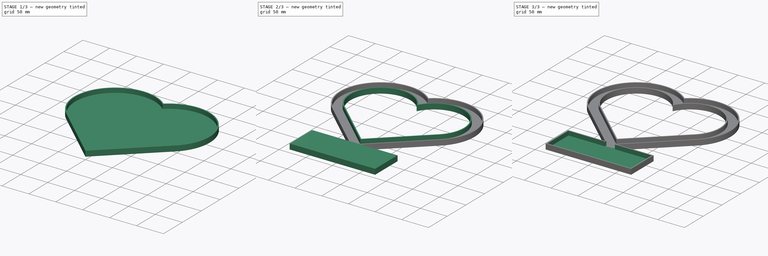
[diagram: build sequence overview — one tinted view per stage of 3, left to right]
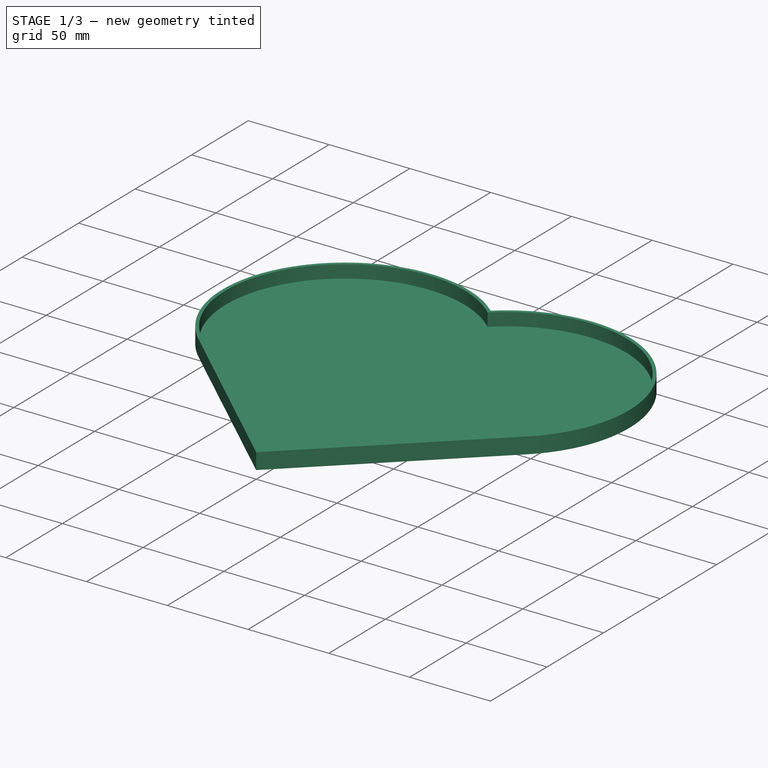
[diagram: stage 1 of 3 — iso view after this stage's code; geometry added in this stage tinted green]
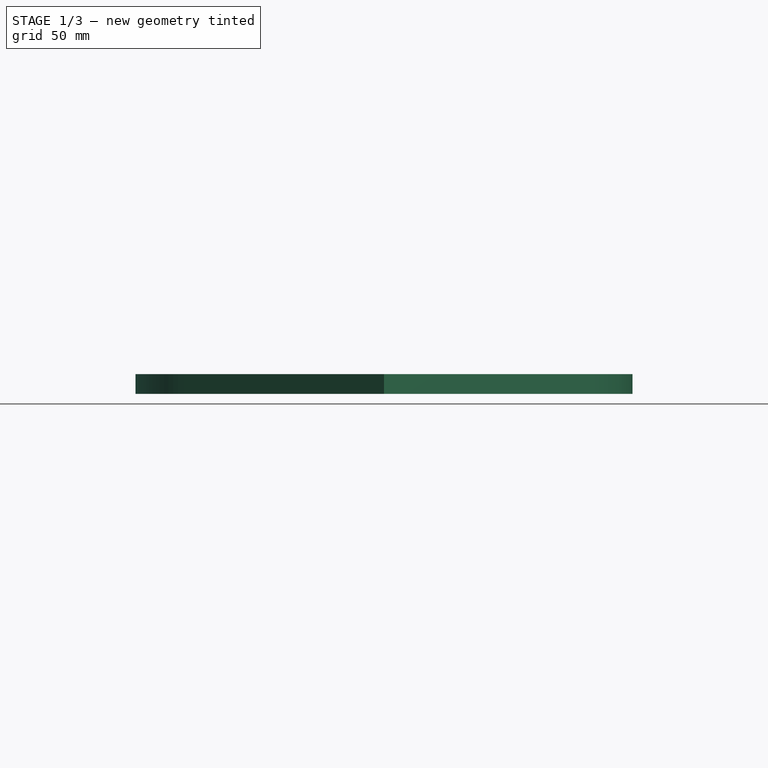
[diagram: stage 1 of 3 — front view after this stage's code; geometry added in this stage tinted green]
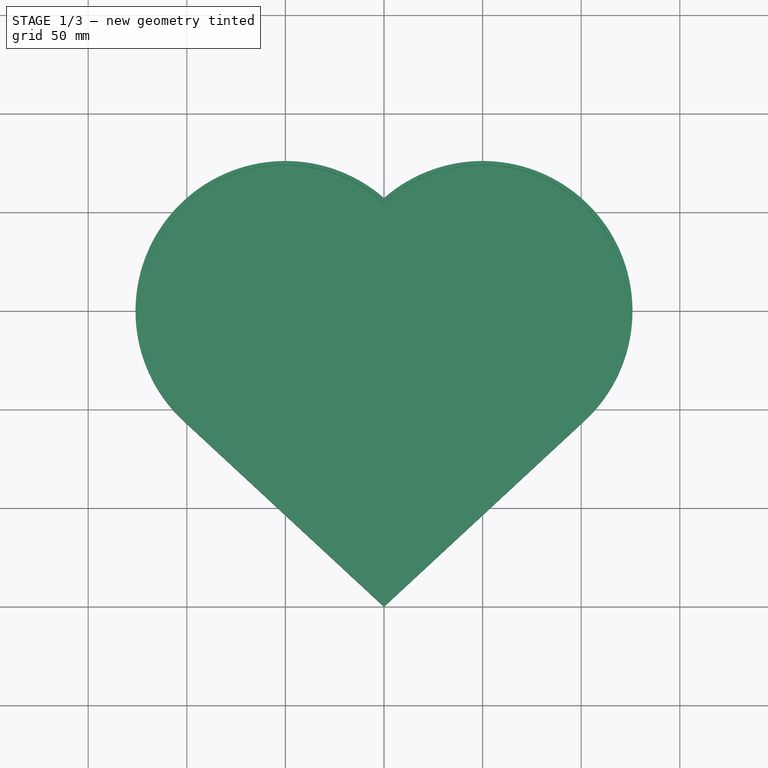
[diagram: stage 1 of 3 — top view after this stage's code; geometry added in this stage tinted green]
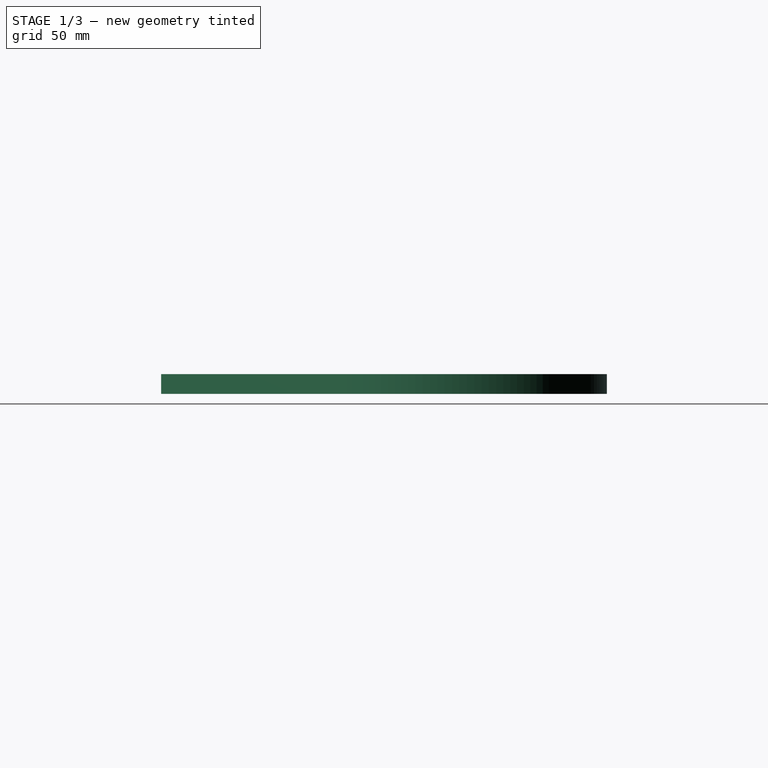
[diagram: stage 1 of 3 — right view after this stage's code; geometry added in this stage tinted green]
FCSTD DOCUMENT  (FreeCAD 0.19R24291 (Git))
Label: heart_tube_top
License: All rights reserved
LicenseURL: http://en.wikipedia.org/wiki/All_rights_reserved
objects: Sketcher::SketchObject×7, PartDesign::Pocket×4, PartDesign::Pad×3, PartDesign::Body×1
note: 22 computed .brp shape members not serialized (recipe doc carries the construction recipe); baked Part::Feature solids carry a one-line shape summary decoded from their .brp

FEATURE [Sketcher::SketchObject] Sketch
  AttachmentOffset = pos=(0,0,10) rot=(0,0,1;0rad)
  FullyConstrained = true
  MapMode = 5
  Placement = pos=(0,0,10) rot=(0,0,1;0rad)
  Support = -> [XY_Plane]
  sketch-geometry (4):
    g0: ArcOfCircle CenterX=-50 CenterY=0 CenterZ=0 NormalX=0 NormalY=0 NormalZ=1 AngleXU=0 Radius=56 StartAngle=0.467146 EndAngle=3.96463
    g1: ArcOfCircle CenterX=50 CenterY=0 CenterZ=0 NormalX=0 NormalY=0 NormalZ=1 AngleXU=0 Radius=56 StartAngle=5.46015 EndAngle=8.95763
    g2: LineSegment StartX=-88.08 StartY=-41.0599 StartZ=0 EndX=0 EndY=-122.748 EndZ=0
    g3: LineSegment StartX=0 StartY=-122.748 StartZ=0 EndX=88.08 EndY=-41.0599 EndZ=0
  constraints (11):
    c: Symmetric(g0,g1,g-2)
    c: Equal(g1,g0)
    c: Coincident(g0,g1)
    c: PointOnObject(g2,g-2)
    c: Coincident(g3,g2)
    c: Tangent(g3,g1) = -1.5708
    c: Tangent(g2,g0) = -1.5708
    c: DistanceX(g0,g1) = 100
    c: PointOnObject(g1,g-1)
    c: Distance(g-1,g2) = 90
    c: Radius(g1) = 56
FEATURE [Sketcher::SketchObject] Sketch001
  FullyConstrained = true
  MapMode = 5
  Support = -> [XY_Plane]
  sketch-geometry (4):
    g0: ArcOfCircle CenterX=-50 CenterY=0 CenterZ=0 NormalX=0 NormalY=0 NormalZ=1 AngleXU=0 Radius=76 StartAngle=0.852776 EndAngle=3.96463
    g1: ArcOfCircle CenterX=50 CenterY=0 CenterZ=0 NormalX=0 NormalY=0 NormalZ=1 AngleXU=0 Radius=76 StartAngle=5.46015 EndAngle=8.572
    g2: LineSegment StartX=-101.68 StartY=-55.7241 StartZ=0 EndX=0 EndY=-150.025 EndZ=0
    g3: LineSegment StartX=0 StartY=-150.025 StartZ=0 EndX=101.68 EndY=-55.7241 EndZ=0
  constraints (11):
    c: Symmetric(g0,g1,g-2)
    c: Equal(g1,g0)
    c: Coincident(g0,g1)
    c: PointOnObject(g2,g-2)
    c: Coincident(g3,g2)
    c: Tangent(g3,g1) = -1.5708
    c: Tangent(g2,g0) = -1.5708
    c: DistanceX(g0,g1) = 100
    c: PointOnObject(g1,g-1)
    c: Distance(g-1,g2) = 110
    c: Radius(g1) = 76
FEATURE [Sketcher::SketchObject] Sketch002
  AttachmentOffset = pos=(0,0,10) rot=(0,0,1;0rad)
  FullyConstrained = true
  MapMode = 5
  Placement = pos=(0,0,10) rot=(0,0,1;0rad)
  Support = -> [XY_Plane]
  sketch-geometry (4):
    g0: ArcOfCircle CenterX=-50 CenterY=0 CenterZ=0 NormalX=0 NormalY=0 NormalZ=1 AngleXU=0 Radius=74 StartAngle=0.828915 EndAngle=3.96463
    g1: ArcOfCircle CenterX=50 CenterY=0 CenterZ=0 NormalX=0 NormalY=0 NormalZ=1 AngleXU=0 Radius=74 StartAngle=5.46015 EndAngle=8.59586
    g2: LineSegment StartX=-100.32 StartY=-54.2577 StartZ=0 EndX=0 EndY=-147.297 EndZ=0
    g3: LineSegment StartX=0 StartY=-147.297 StartZ=0 EndX=100.32 EndY=-54.2577 EndZ=0
  constraints (11):
    c: Symmetric(g0,g1,g-2)
    c: Equal(g1,g0)
    c: Coincident(g0,g1)
    c: PointOnObject(g2,g-2)
    c: Coincident(g3,g2)
    c: Tangent(g3,g1) = -1.5708
    c: Tangent(g2,g0) = -1.5708
    c: DistanceX(g0,g1) = 100
    c: PointOnObject(g1,g-1)
    c: Distance(g-1,g2) = 108
    c: Radius(g1) = 74
FEATURE [Sketcher::SketchObject] Sketch003
  FullyConstrained = true
  MapMode = 5
  Support = -> [XY_Plane]
  sketch-geometry (4):
    g0: ArcOfCircle CenterX=-50 CenterY=0 CenterZ=0 NormalX=0 NormalY=0 NormalZ=1 AngleXU=0 Radius=58 StartAngle=0.531458 EndAngle=3.96463
    g1: ArcOfCircle CenterX=50 CenterY=0 CenterZ=0 NormalX=0 NormalY=0 NormalZ=1 AngleXU=0 Radius=58 StartAngle=5.46015 EndAngle=8.89332
    g2: LineSegment StartX=-89.44 StartY=-42.5263 StartZ=0 EndX=0 EndY=-125.475 EndZ=0
    g3: LineSegment StartX=0 StartY=-125.475 StartZ=0 EndX=89.44 EndY=-42.5263 EndZ=0
  constraints (11):
    c: Symmetric(g0,g1,g-2)
    c: Equal(g1,g0)
    c: Coincident(g0,g1)
    c: PointOnObject(g2,g-2)
    c: Coincident(g3,g2)
    c: Tangent(g3,g1) = -1.5708
    c: Tangent(g2,g0) = -1.5708
    c: DistanceX(g0,g1) = 100
    c: PointOnObject(g1,g-1)
    c: Distance(g-1,g2) = 92
    c: Radius(g1) = 58
FEATURE [PartDesign::Pad] Pad
  Direction = (1,1,1)
  Length = 10
  Length2 = 100
  Profile = -> Sketch001
  Refine = true
  Type = 0
FEATURE [PartDesign::Pocket] Pocket
  BaseFeature = -> Pad
  Length = 8
  Length2 = 100
  Profile = -> Sketch002
  Refine = true
  Type = 0
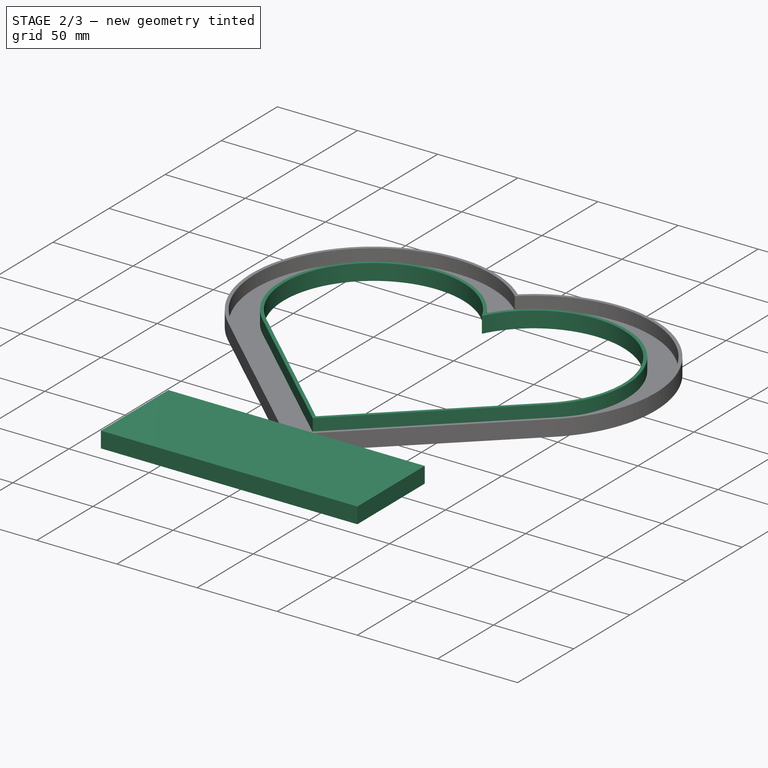
[diagram: stage 2 of 3 — iso view after this stage's code; geometry added in this stage tinted green]
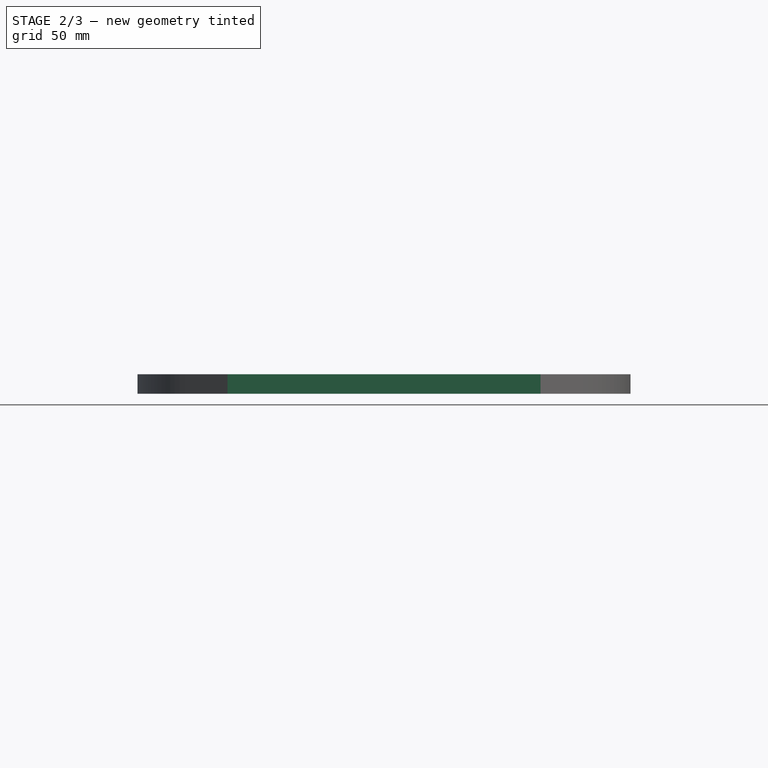
[diagram: stage 2 of 3 — front view after this stage's code; geometry added in this stage tinted green]
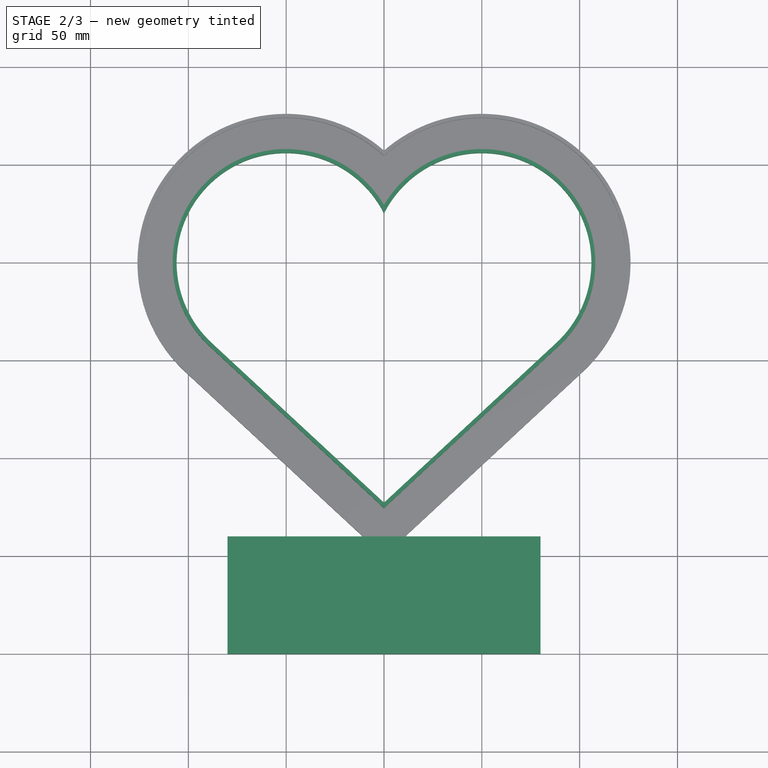
[diagram: stage 2 of 3 — top view after this stage's code; geometry added in this stage tinted green]
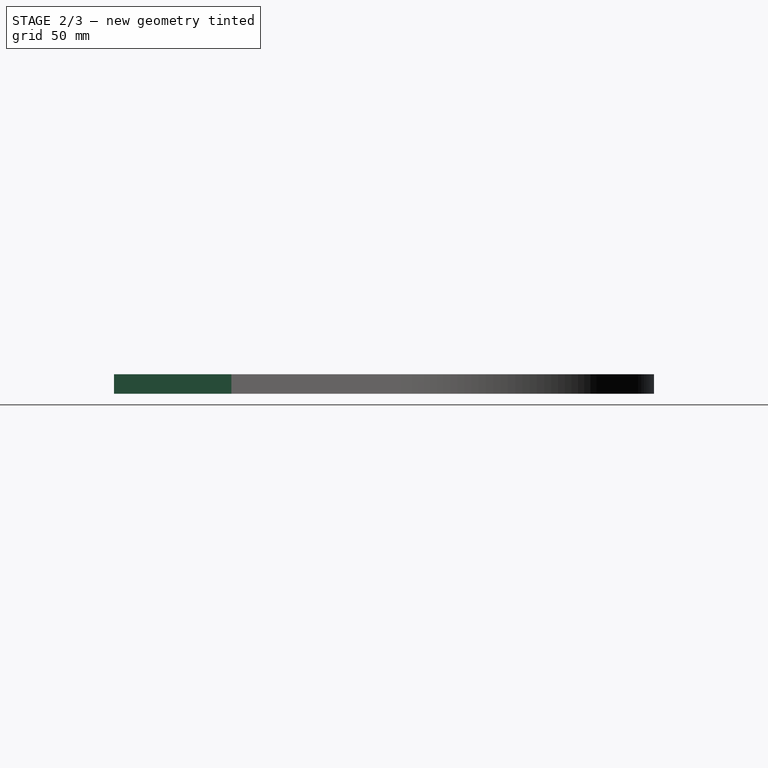
[diagram: stage 2 of 3 — right view after this stage's code; geometry added in this stage tinted green]
FEATURE [PartDesign::Pad] Pad001
  BaseFeature = -> Pocket
  Direction = (1,1,1)
  Length = 10
  Length2 = 100
  Profile = -> Sketch003
  Refine = true
  Type = 0
FEATURE [PartDesign::Pocket] Pocket001
  BaseFeature = -> Pad001
  Length = 5
  Length2 = 100
  Profile = -> Sketch
  Refine = true
  Type = 1
FEATURE [Sketcher::SketchObject] Sketch004
  FullyConstrained = true
  MapMode = 5
  Support = -> [XY_Plane]
  sketch-geometry (4):
    g0: LineSegment StartX=-80 StartY=-140 StartZ=0 EndX=80 EndY=-140 EndZ=0
    g1: LineSegment StartX=80 StartY=-140 StartZ=0 EndX=80 EndY=-200 EndZ=0
    g2: LineSegment StartX=80 StartY=-200 StartZ=0 EndX=-80 EndY=-200 EndZ=0
    g3: LineSegment StartX=-80 StartY=-200 StartZ=0 EndX=-80 EndY=-140 EndZ=0
  constraints (11):
    c: Coincident(g0,g1)
    c: Coincident(g1,g2)
    c: Coincident(g2,g3)
    c: Coincident(g3,g0)
    c: Horizontal(g2)
    c: Vertical(g1)
    c: Vertical(g3)
    c: DistanceY(g1,g1) = 60
    c: DistanceX(g0,g0) = 160
    c: Symmetric(g0,g0,g-2)
    c: DistanceY(g0,g-1) = 140
FEATURE [PartDesign::Pad] Pad002
  BaseFeature = -> Pocket001
  Direction = (1,1,1)
  Length = 10
  Length2 = 100
  Profile = -> Sketch004
  Refine = true
  Type = 0
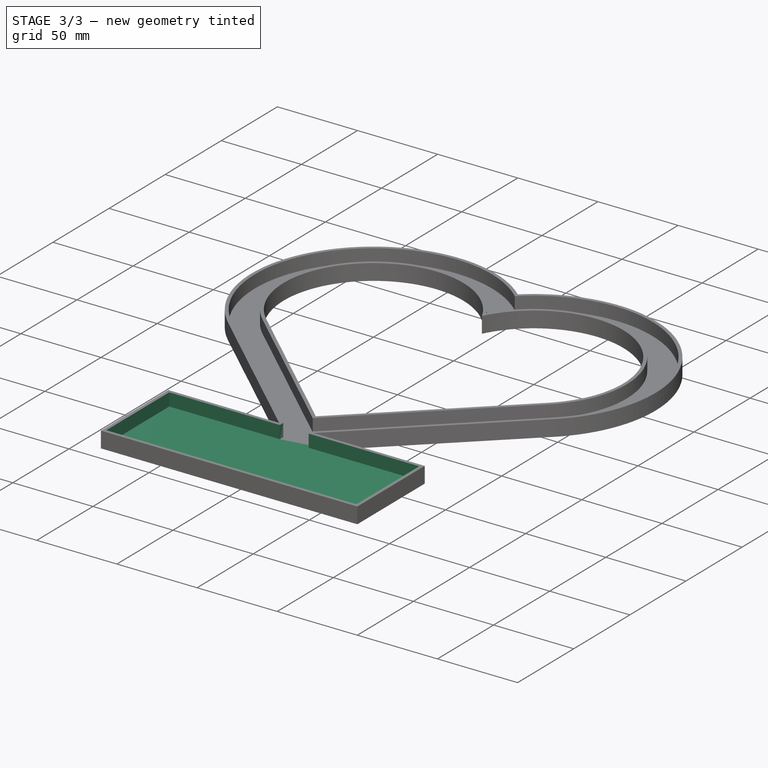
[diagram: stage 3 of 3 — iso view after this stage's code; geometry added in this stage tinted green]
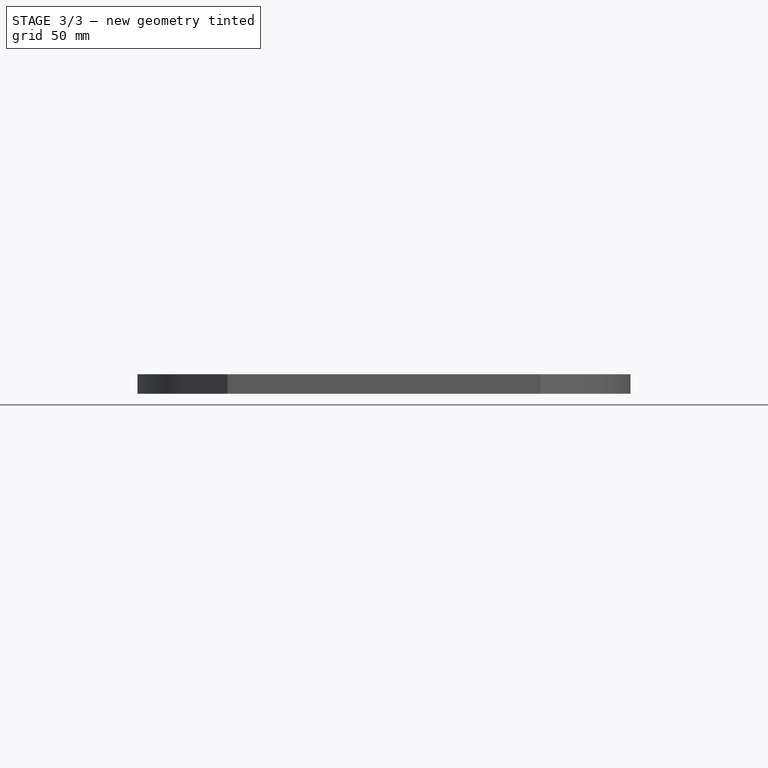
[diagram: stage 3 of 3 — front view after this stage's code; geometry added in this stage tinted green]
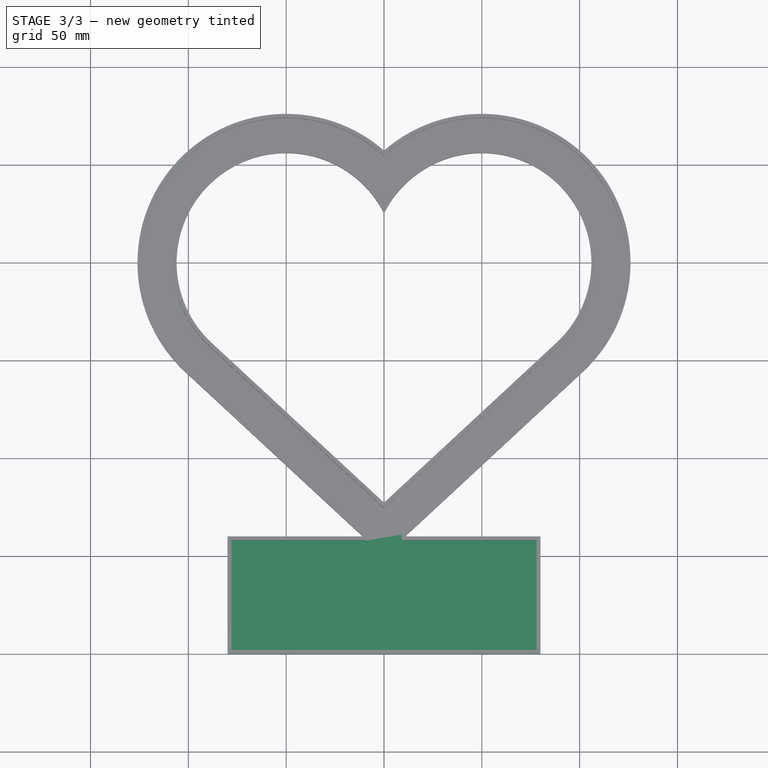
[diagram: stage 3 of 3 — top view after this stage's code; geometry added in this stage tinted green]
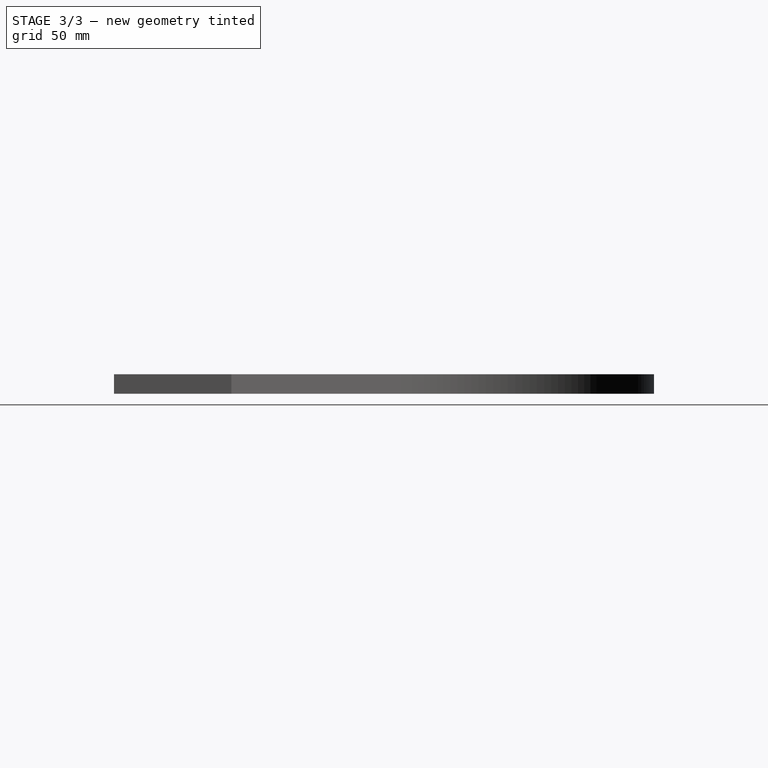
[diagram: stage 3 of 3 — right view after this stage's code; geometry added in this stage tinted green]
FEATURE [Sketcher::SketchObject] Sketch005
  AttachmentOffset = pos=(0,0,10) rot=(0,0,1;0rad)
  FullyConstrained = true
  MapMode = 5
  Placement = pos=(0,0,10) rot=(0,0,1;0rad)
  Support = -> [XY_Plane]
  sketch-geometry (4):
    g0: LineSegment StartX=-78 StartY=-142 StartZ=0 EndX=78 EndY=-142 EndZ=0
    g1: LineSegment StartX=78 StartY=-142 StartZ=0 EndX=78 EndY=-198 EndZ=0
    g2: LineSegment StartX=78 StartY=-198 StartZ=0 EndX=-78 EndY=-198 EndZ=0
    g3: LineSegment StartX=-78 StartY=-198 StartZ=0 EndX=-78 EndY=-142 EndZ=0
  constraints (11):
    c: Coincident(g0,g1)
    c: Coincident(g1,g2)
    c: Coincident(g2,g3)
    c: Coincident(g3,g0)
    c: Horizontal(g2)
    c: Vertical(g1)
    c: Vertical(g3)
    c: DistanceY(g1,g1) = 56
    c: DistanceX(g0,g0) = 156
    c: Symmetric(g0,g0,g-2)
    c: DistanceY(g0,g-1) = 142
FEATURE [PartDesign::Pocket] Pocket002
  BaseFeature = -> Pad002
  Length = 8
  Length2 = 100
  Profile = -> Sketch005
  Refine = true
  Type = 0
FEATURE [Sketcher::SketchObject] Sketch006
  AttachmentOffset = pos=(0,0,10) rot=(0,0,1;0rad)
  FullyConstrained = false
  MapMode = 5
  Placement = pos=(0,0,10) rot=(0,0,1;0rad)
  Support = -> [XY_Plane]
  sketch-geometry (4):
    g0: LineSegment StartX=-9 StartY=-134.293 StartZ=0 EndX=9 EndY=-134.293 EndZ=0
    g1: LineSegment StartX=9 StartY=-134.293 StartZ=0 EndX=9 EndY=-146.293 EndZ=0
    g2: LineSegment StartX=9 StartY=-146.293 StartZ=0 EndX=-9 EndY=-146.293 EndZ=0
    g3: LineSegment StartX=-9 StartY=-146.293 StartZ=0 EndX=-9 EndY=-134.293 EndZ=0
  constraints (10):
    c: Coincident(g0,g1)
    c: Coincident(g1,g2)
    c: Coincident(g2,g3)
    c: Coincident(g3,g0)
    c: Horizontal(g0)
    c: Vertical(g1)
    c: Vertical(g3)
    c: DistanceY(g1,g1) = 12
    c: DistanceX(g0,g0) = 18
    c: Symmetric(g1,g2,g-2)
FEATURE [PartDesign::Pocket] Pocket003
  BaseFeature = -> Pocket002
  Length = 8
  Length2 = 100
  Profile = -> Sketch006
  Refine = true
  Type = 0
FEATURE [PartDesign::Body] Body
  Group = -> [Sketch001,Sketch002,Sketch003,Sketch,Pad,Pocket,Pad001,Pocket001,Sketch004,Pad002,Sketch005,Pocket002,Sketch006,Pocket003]
  Origin = -> Origin
  Tip = -> Pocket003
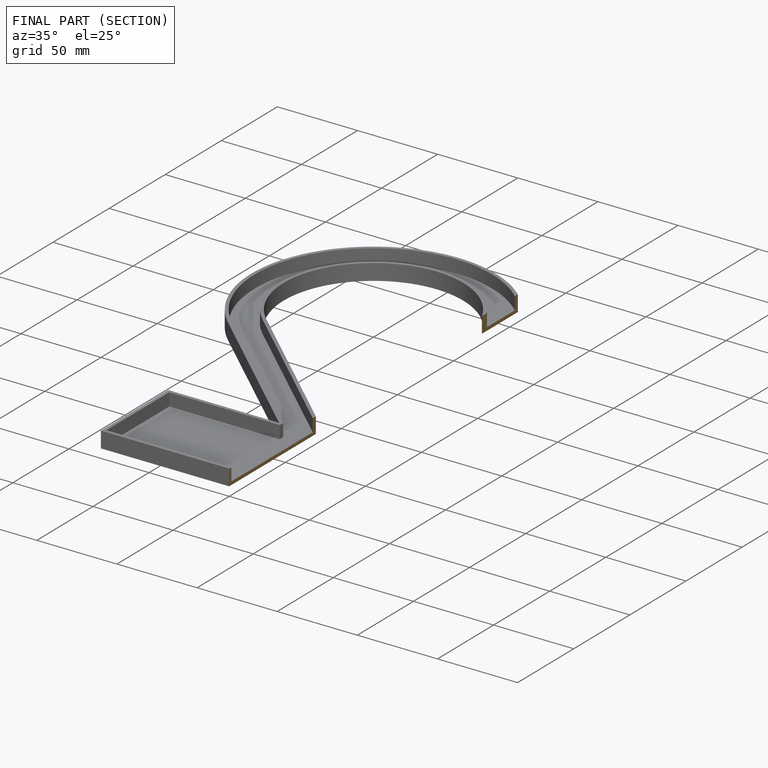
[diagram: finished part — half-section view (interior)]
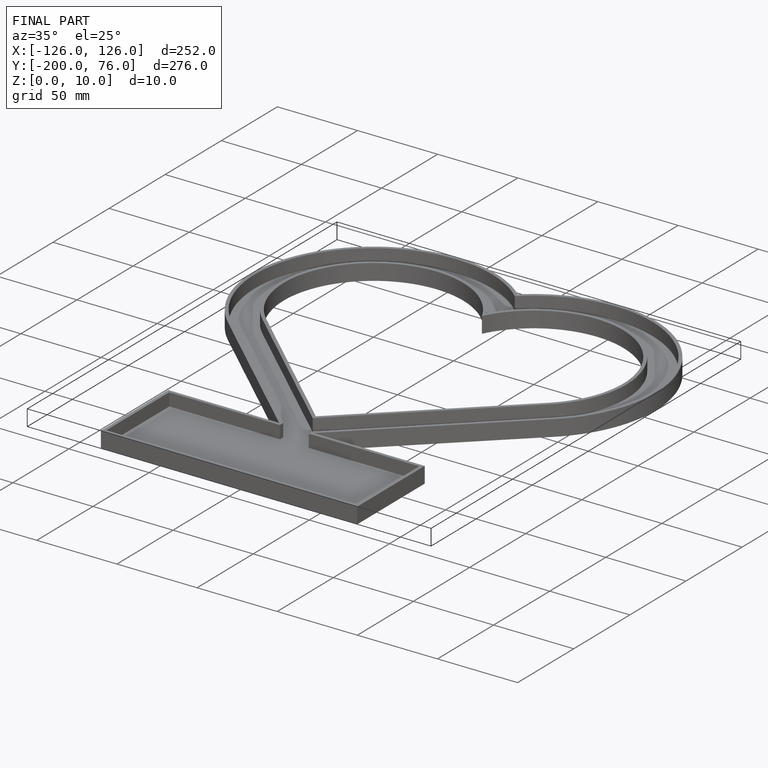
[diagram: finished part — iso view with bounding-box wireframe]
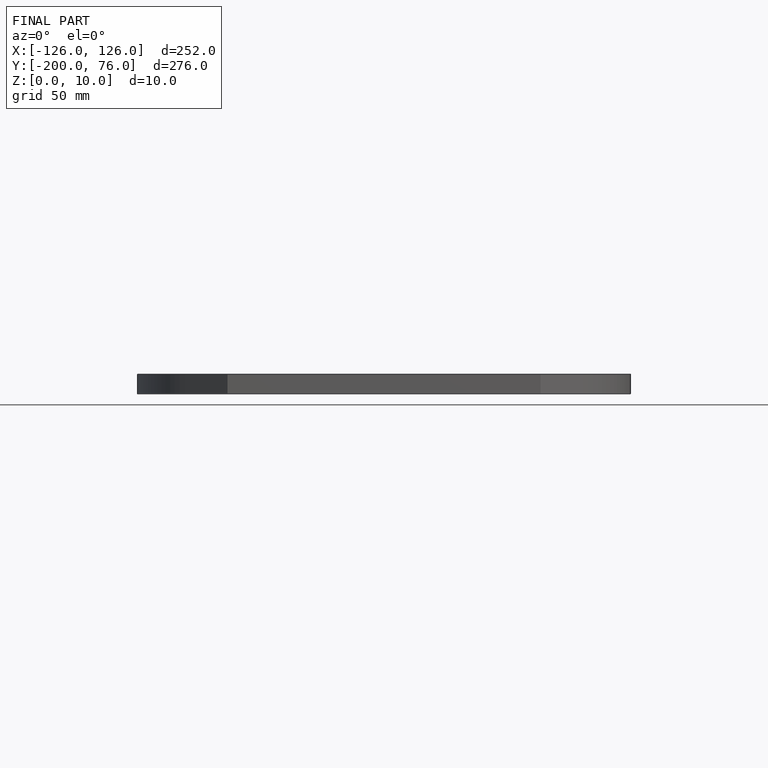
[diagram: finished part — front view with bounding-box wireframe]
